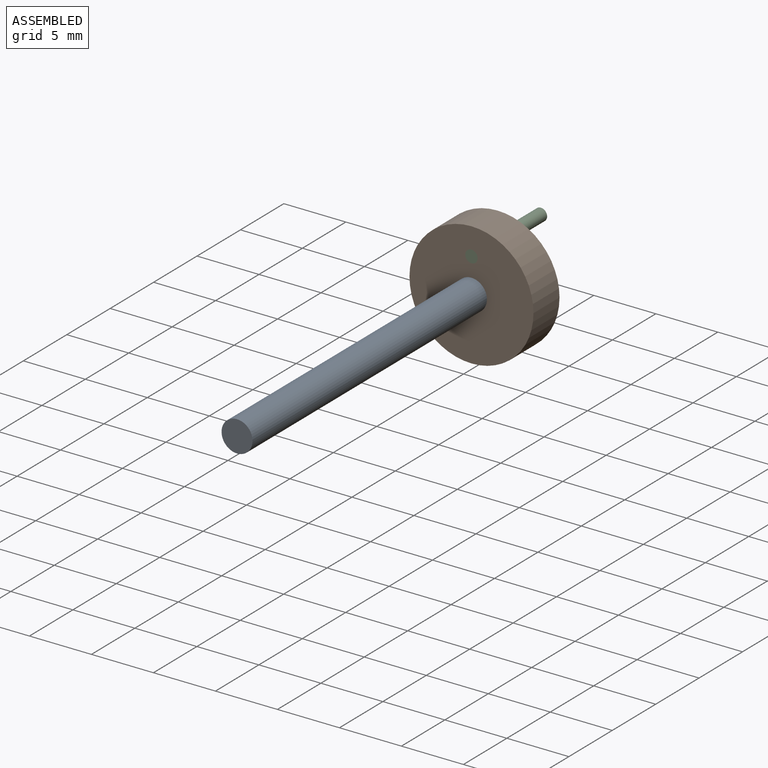
[diagram: assembled view]
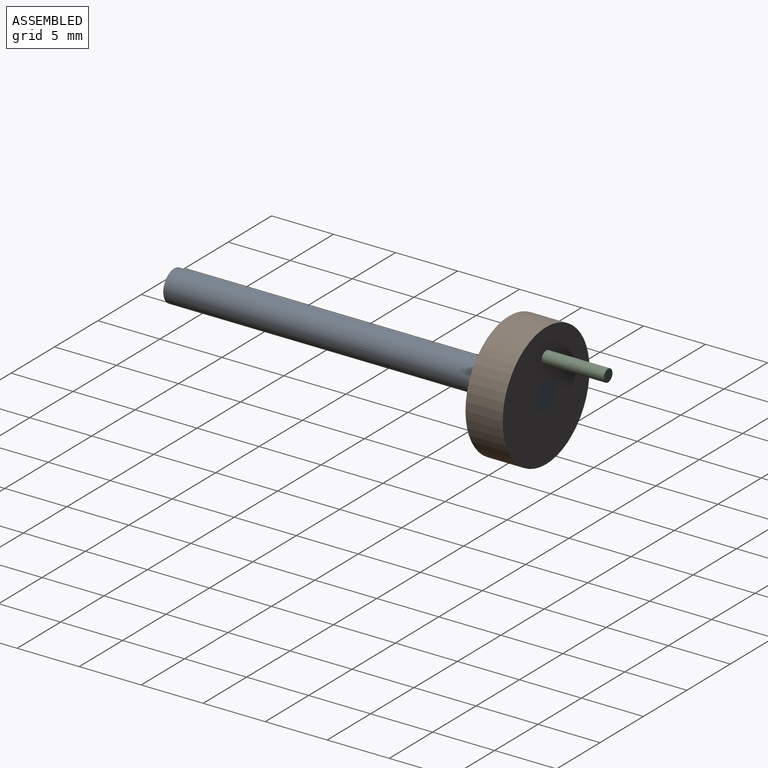
[diagram: assembled view, second angle]
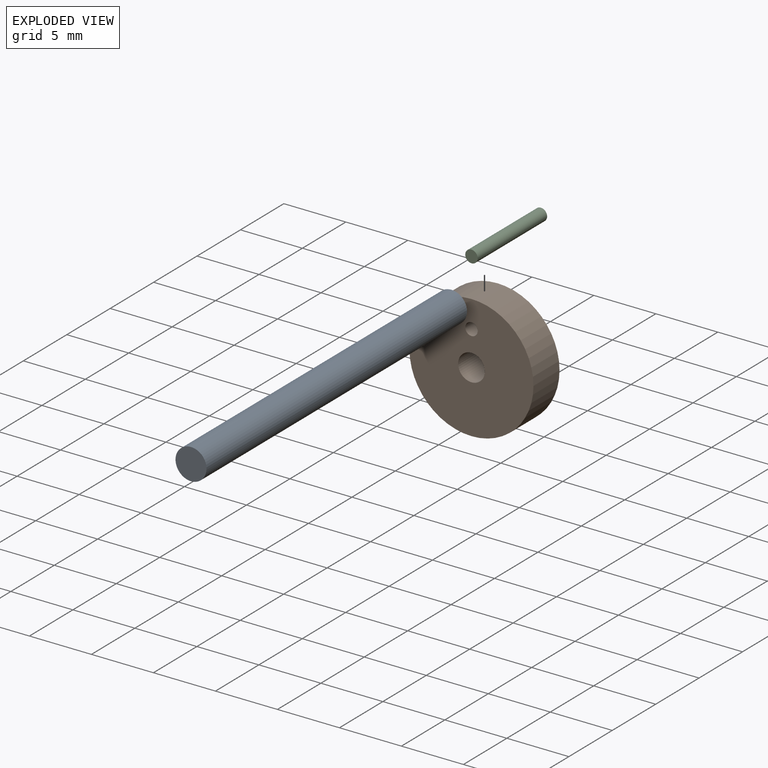
[diagram: exploded view]
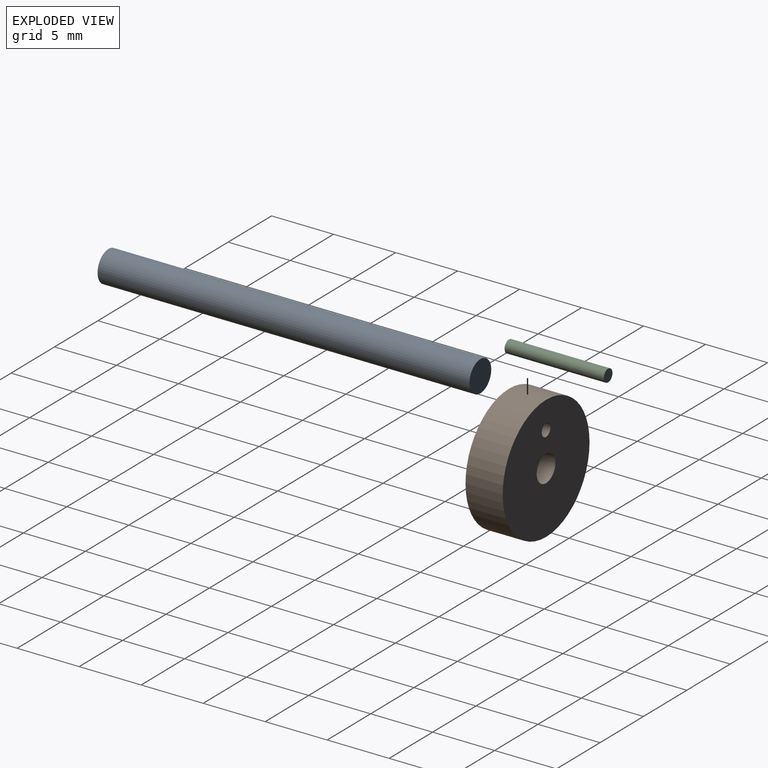
[diagram: exploded view, second angle]
ASSEMBLY  parts=3 mates=2
PART A: 3 faces, bbox 2.5x30x2.5 mm
  f0: cylinder r=1.25mm len=30mm, axis (0,1,0), area 235.6mm2, adj f1,f2
  f1: plane 2.5x2.5mm, normal (0,-1,0), area 4.9mm2, adj f0
  f2: plane 2.5x2.5mm, normal (0,1,0), area 4.9mm2, adj f0
PART B: 5 faces, bbox 10x3x10 mm
  f0: cylinder r=5mm len=10mm, axis (0,1,0), area 94.2mm2, adj f1,f2
  f1: plane 10x10mm, normal (0,-1,0), area 74.1mm2, adj f0,f3,f4
  f2: plane 10x10mm, normal (0,1,0), area 74.1mm2, adj f0,f3,f4
  f3: cylinder r=1.07mm len=3mm, axis (0,-1,0), area 20.3mm2, adj f1,f2
  f4: cylinder r=0.5mm len=3mm, axis (0,-1,0), area 9.4mm2, adj f1,f2
PART C: 3 faces, bbox 1x8x1 mm
  f0: cylinder r=0.5mm len=8mm, axis (0,1,0), area 25.1mm2, adj f1,f2
  f1: plane 1x1mm, normal (0,-1,0), area 0.8mm2, adj f0
  f2: plane 1x1mm, normal (0,1,0), area 0.8mm2, adj f0
PLACE A t=(-8.3,-5.66,-2.6)mm
PLACE B t=(-8.3,-5.66,-2.6)mm
PLACE C t=(-8.3,-0.66,0.2)mm
MATE fastened B.f4 <-> C.f0  axis (0,-1,0) through (-8.3,-8.66,0.2)mm
MATE fastened B.f3 <-> A.f0  axis (0,1,0) through (-8.3,-5.66,-2.6)mm
